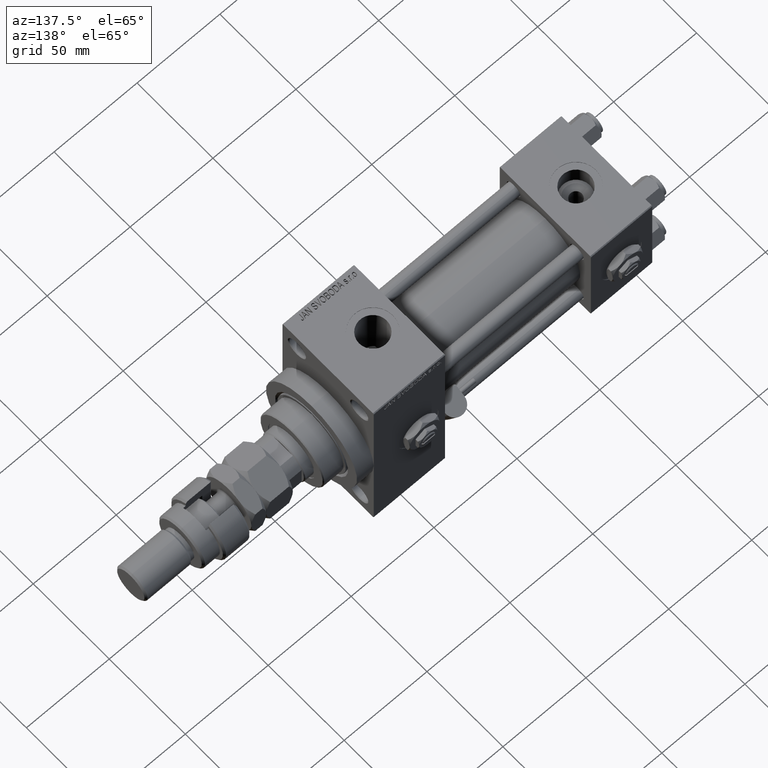
[diagram: clean part render]
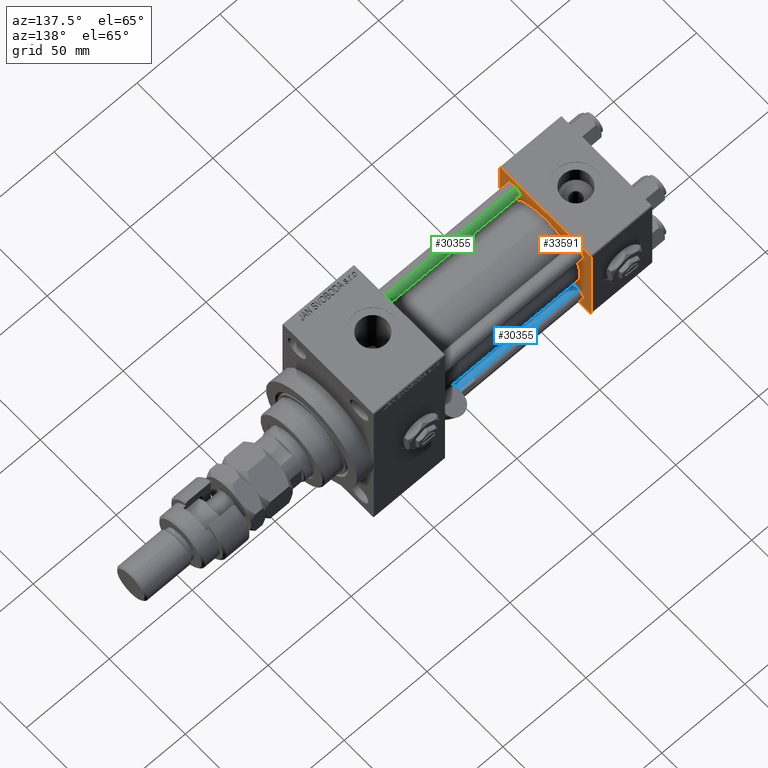
[diagram: same view with three faces highlighted in distinct colors, each labeled with its STEP entity id]
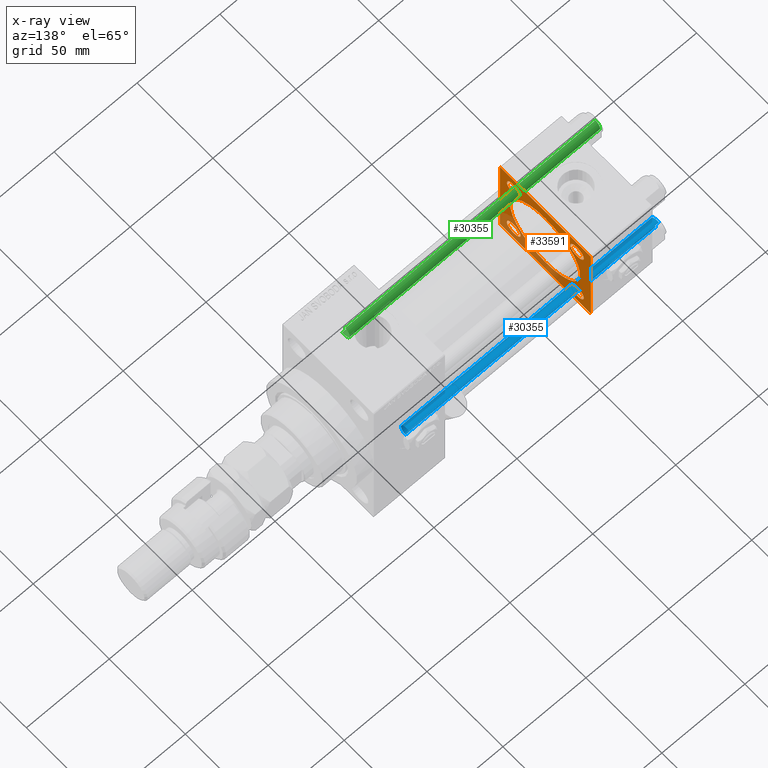
[diagram: x-ray of the same camera — body ghosted, the three highlighted faces saturated]
A machine part, auxiliary view with three faces highlighted in distinct colors.
The next image is the same camera in x-ray (body ghosted, the three faces saturated) — at least one of them is partly hidden behind the body in this view.
Their STEP definitions:

[orange] entity #33591 — the highlighted planar face has unit normal (-1, 0, 0).
#45 = EDGE_CURVE ( 'NONE', #36578, #48871, #16033, .T. ) ;
#506 = EDGE_CURVE ( 'NONE', #34351, #14310, #28151, .T. ) ;
#1149 = EDGE_CURVE ( 'NONE', #45618, #47961, #5643, .T. ) ;
#1368 = ORIENTED_EDGE ( 'NONE', *, *, #8160, .T. ) ;
#1422 = DIRECTION ( 'NONE',  ( -1.000000000000000000, 0.000000000000000000, -0.000000000000000000 ) ) ;
#1474 = AXIS2_PLACEMENT_3D ( 'NONE', #9306, #12840, #46589 ) ;
#1558 = EDGE_LOOP ( 'NONE', ( #43963, #37346 ) ) ;
#1594 = AXIS2_PLACEMENT_3D ( 'NONE', #40123, #3628, #44444 ) ;
#1610 = CARTESIAN_POINT ( 'NONE',  ( 37.00000000000000000, -20.84999999999999076, 20.85000000000000497 ) ) ;
#1866 = DIRECTION ( 'NONE',  ( 0.000000000000000000, 0.000000000000000000, 1.000000000000000000 ) ) ;
#1962 = DIRECTION ( 'NONE',  ( -0.000000000000000000, 0.7071067811865574537, 0.7071067811865376918 ) ) ;
#1975 = ORIENTED_EDGE ( 'NONE', *, *, #43296, .T. ) ;
#2321 = VERTEX_POINT ( 'NONE', #15323 ) ;
#2640 = DIRECTION ( 'NONE',  ( -1.000000000000000000, 0.000000000000000000, -0.000000000000000000 ) ) ;
#3628 = DIRECTION ( 'NONE',  ( -1.000000000000000000, 0.000000000000000000, -0.000000000000000000 ) ) ;
#3923 = ORIENTED_EDGE ( 'NONE', *, *, #14805, .T. ) ;
#3946 = DIRECTION ( 'NONE',  ( 0.000000000000000000, 0.000000000000000000, 1.000000000000000000 ) ) ;
#3992 = VERTEX_POINT ( 'NONE', #48469 ) ;
#4144 = EDGE_CURVE ( 'NONE', #14310, #34351, #22974, .T. ) ;
#4696 = CIRCLE ( 'NONE', #5534, 4.500000000000031974 ) ;
#5283 = EDGE_CURVE ( 'NONE', #11880, #10005, #7592, .T. ) ;
#5494 = FACE_BOUND ( 'NONE', #19457, .T. ) ;
#5534 = AXIS2_PLACEMENT_3D ( 'NONE', #31816, #19665, #3946 ) ;
#5643 = LINE ( 'NONE', #47270, #41090 ) ;
#5735 = ORIENTED_EDGE ( 'NONE', *, *, #6211, .T. ) ;
#6211 = EDGE_CURVE ( 'NONE', #45618, #10005, #48194, .T. ) ;
#6290 = ORIENTED_EDGE ( 'NONE', *, *, #25156, .T. ) ;
#6591 = CARTESIAN_POINT ( 'NONE',  ( 37.00000000000000000, -20.84999999999999076, 20.85000000000000497 ) ) ;
#6711 = ORIENTED_EDGE ( 'NONE', *, *, #27816, .T. ) ;
#6897 = VECTOR ( 'NONE', #48926, 1000.000000000000114 ) ;
#7592 = LINE ( 'NONE', #24634, #16139 ) ;
#8160 = EDGE_CURVE ( 'NONE', #9640, #47961, #35301, .T. ) ;
#9306 = CARTESIAN_POINT ( 'NONE',  ( 37.00000000000000000, 0.000000000000000000, 0.000000000000000000 ) ) ;
#9640 = VERTEX_POINT ( 'NONE', #52268 ) ;
#10005 = VERTEX_POINT ( 'NONE', #29704 ) ;
#10176 = DIRECTION ( 'NONE',  ( 0.000000000000000000, 0.7071067811865474617, -0.7071067811865474617 ) ) ;
#10603 = EDGE_CURVE ( 'NONE', #2321, #3992, #25529, .T. ) ;
#10901 = VERTEX_POINT ( 'NONE', #19810 ) ;
#11659 = VERTEX_POINT ( 'NONE', #23607 ) ;
#11839 = EDGE_CURVE ( 'NONE', #44563, #52365, #25943, .T. ) ;
#11880 = VERTEX_POINT ( 'NONE', #52827 ) ;
#12550 = EDGE_CURVE ( 'NONE', #46103, #9640, #12719, .T. ) ;
#12719 = LINE ( 'NONE', #29204, #38837 ) ;
#12840 = DIRECTION ( 'NONE',  ( -1.000000000000000000, 0.000000000000000000, -0.000000000000000000 ) ) ;
#13510 = CARTESIAN_POINT ( 'NONE',  ( 37.00000000000000000, 20.84999999999999787, -20.85000000000000142 ) ) ;
#13589 = CARTESIAN_POINT ( 'NONE',  ( 37.00000000000000000, 20.84999999999999787, -20.85000000000000142 ) ) ;
#13645 = FACE_OUTER_BOUND ( 'NONE', #37894, .T. ) ;
#14310 = VERTEX_POINT ( 'NONE', #50870 ) ;
#14471 = CARTESIAN_POINT ( 'NONE',  ( 37.00000000000000000, 20.84999999999999787, 16.34999999999996945 ) ) ;
#14805 = EDGE_CURVE ( 'NONE', #11880, #2321, #32432, .T. ) ;
#15323 = CARTESIAN_POINT ( 'NONE',  ( 37.00000000000000000, 29.49999999999999289, 30.00000000000000000 ) ) ;
#15440 = CARTESIAN_POINT ( 'NONE',  ( 37.00000000000000000, 29.49999999999999289, 30.00000000000000000 ) ) ;
#15565 = DIRECTION ( 'NONE',  ( 1.000000000000000000, -0.000000000000000000, 0.000000000000000000 ) ) ;
#15754 = CIRCLE ( 'NONE', #28720, 4.500000000000031974 ) ;
#16033 = CIRCLE ( 'NONE', #29834, 4.500000000000031974 ) ;
#16139 = VECTOR ( 'NONE', #53505, 1000.000000000000000 ) ;
#17939 = DIRECTION ( 'NONE',  ( 0.000000000000000000, 0.000000000000000000, 1.000000000000000000 ) ) ;
#19351 = CARTESIAN_POINT ( 'NONE',  ( 37.00000000000000000, 20.84999999999999787, -25.35000000000003340 ) ) ;
#19457 = EDGE_LOOP ( 'NONE', ( #36616, #24484 ) ) ;
#19665 = DIRECTION ( 'NONE',  ( -1.000000000000000000, 0.000000000000000000, -0.000000000000000000 ) ) ;
#19810 = CARTESIAN_POINT ( 'NONE',  ( 37.00000000000000000, -20.84999999999999076, 25.35000000000003695 ) ) ;
#20005 = EDGE_CURVE ( 'NONE', #11659, #10901, #15754, .T. ) ;
#20026 = CARTESIAN_POINT ( 'NONE',  ( 37.00000000000000711, -2.602085213965210642E-15, 23.00000000000000000 ) ) ;
#20047 = CIRCLE ( 'NONE', #22619, 23.00000000000000000 ) ;
#21363 = VECTOR ( 'NONE', #1962, 999.9999999999998863 ) ;
#21981 = DIRECTION ( 'NONE',  ( -0.000000000000000000, -0.7071067811865474617, -0.7071067811865474617 ) ) ;
#22013 = CARTESIAN_POINT ( 'NONE',  ( 37.00000000000000000, 20.84999999999999787, 25.35000000000003340 ) ) ;
#22136 = VERTEX_POINT ( 'NONE', #22013 ) ;
#22345 = CIRCLE ( 'NONE', #1594, 4.500000000000031974 ) ;
#22555 = EDGE_LOOP ( 'NONE', ( #6711, #6290 ) ) ;
#22619 = AXIS2_PLACEMENT_3D ( 'NONE', #32875, #32327, #39900 ) ;
#22974 = CIRCLE ( 'NONE', #53156, 4.500000000000031974 ) ;
#23607 = CARTESIAN_POINT ( 'NONE',  ( 37.00000000000000000, -20.84999999999999076, 16.34999999999997300 ) ) ;
#24484 = ORIENTED_EDGE ( 'NONE', *, *, #53102, .F. ) ;
#24634 = CARTESIAN_POINT ( 'NONE',  ( 37.00000000000000000, 29.99999999999999289, 30.00000000000000000 ) ) ;
#25156 = EDGE_CURVE ( 'NONE', #22136, #43144, #41734, .T. ) ;
#25529 = LINE ( 'NONE', #50369, #25869 ) ;
#25690 = DIRECTION ( 'NONE',  ( 0.000000000000000000, -1.000000000000000000, -1.156482317317871725E-16 ) ) ;
#25869 = VECTOR ( 'NONE', #41458, 1000.000000000000000 ) ;
#25943 = CIRCLE ( 'NONE', #36257, 23.00000000000000000 ) ;
#26412 = ORIENTED_EDGE ( 'NONE', *, *, #10603, .T. ) ;
#26790 = CIRCLE ( 'NONE', #39700, 4.500000000000031974 ) ;
#27017 = DIRECTION ( 'NONE',  ( 0.000000000000000000, 0.000000000000000000, 1.000000000000000000 ) ) ;
#27183 = CARTESIAN_POINT ( 'NONE',  ( 37.00000000000000000, -29.50000000000000000, -30.00000000000000711 ) ) ;
#27808 = DIRECTION ( 'NONE',  ( 0.000000000000000000, 0.000000000000000000, 1.000000000000000000 ) ) ;
#27816 = EDGE_CURVE ( 'NONE', #43144, #22136, #4696, .T. ) ;
#28151 = CIRCLE ( 'NONE', #35876, 4.500000000000031974 ) ;
#28720 = AXIS2_PLACEMENT_3D ( 'NONE', #6591, #43356, #48227 ) ;
#29204 = CARTESIAN_POINT ( 'NONE',  ( 37.00000000000000000, -30.00000000000000000, 29.99999999999999289 ) ) ;
#29704 = CARTESIAN_POINT ( 'NONE',  ( 37.00000000000000000, 29.99999999999999289, -29.50000000000000000 ) ) ;
#29834 = AXIS2_PLACEMENT_3D ( 'NONE', #52122, #48079, #27017 ) ;
#29841 = FACE_BOUND ( 'NONE', #1558, .T. ) ;
#29853 = CARTESIAN_POINT ( 'NONE',  ( 37.00000000000000000, -20.84999999999999076, -25.35000000000003695 ) ) ;
#30046 = ORIENTED_EDGE ( 'NONE', *, *, #38659, .T. ) ;
#30063 = DIRECTION ( 'NONE',  ( 0.000000000000000000, 0.000000000000000000, 1.000000000000000000 ) ) ;
#31816 = CARTESIAN_POINT ( 'NONE',  ( 37.00000000000000000, 20.84999999999999787, 20.85000000000000142 ) ) ;
#32197 = CARTESIAN_POINT ( 'NONE',  ( 37.00000000000000711, 2.146024240737016609E-16, -23.00000000000000000 ) ) ;
#32327 = DIRECTION ( 'NONE',  ( 1.000000000000000000, -0.000000000000000000, 0.000000000000000000 ) ) ;
#32432 = LINE ( 'NONE', #15440, #6897 ) ;
#32875 = CARTESIAN_POINT ( 'NONE',  ( 37.00000000000000711, -2.602085213965210642E-15, 0.000000000000000000 ) ) ;
#33295 = EDGE_LOOP ( 'NONE', ( #42666, #50721 ) ) ;
#33591 = ADVANCED_FACE ( 'NONE', ( #37936, #45788, #29841, #37671, #5494, #13645 ), #38737, .F. ) ;
#34351 = VERTEX_POINT ( 'NONE', #19351 ) ;
#35301 = LINE ( 'NONE', #43668, #48188 ) ;
#35436 = EDGE_LOOP ( 'NONE', ( #36892, #30046 ) ) ;
#35811 = DIRECTION ( 'NONE',  ( 0.000000000000000000, 0.000000000000000000, 1.000000000000000000 ) ) ;
#35876 = AXIS2_PLACEMENT_3D ( 'NONE', #13510, #2640, #27808 ) ;
#36022 = CARTESIAN_POINT ( 'NONE',  ( 37.00000000000000000, 29.99999999999999289, -29.50000000000000000 ) ) ;
#36257 = AXIS2_PLACEMENT_3D ( 'NONE', #36346, #15565, #35811 ) ;
#36346 = CARTESIAN_POINT ( 'NONE',  ( 37.00000000000000711, -2.602085213965210642E-15, 0.000000000000000000 ) ) ;
#36578 = VERTEX_POINT ( 'NONE', #29853 ) ;
#36616 = ORIENTED_EDGE ( 'NONE', *, *, #11839, .F. ) ;
#36892 = ORIENTED_EDGE ( 'NONE', *, *, #45, .T. ) ;
#37346 = ORIENTED_EDGE ( 'NONE', *, *, #49157, .T. ) ;
#37627 = DIRECTION ( 'NONE',  ( -1.000000000000000000, 0.000000000000000000, -0.000000000000000000 ) ) ;
#37671 = FACE_BOUND ( 'NONE', #22555, .T. ) ;
#37894 = EDGE_LOOP ( 'NONE', ( #42877, #5735, #42228, #3923, #26412, #1975, #51431, #1368 ) ) ;
#37936 = FACE_BOUND ( 'NONE', #35436, .T. ) ;
#38458 = CARTESIAN_POINT ( 'NONE',  ( 37.00000000000000000, 20.84999999999999787, 20.85000000000000142 ) ) ;
#38659 = EDGE_CURVE ( 'NONE', #48871, #36578, #22345, .T. ) ;
#38737 = PLANE ( 'NONE',  #1474 ) ;
#38837 = VECTOR ( 'NONE', #45673, 1000.000000000000000 ) ;
#38909 = DIRECTION ( 'NONE',  ( -1.000000000000000000, 0.000000000000000000, -0.000000000000000000 ) ) ;
#39700 = AXIS2_PLACEMENT_3D ( 'NONE', #1610, #38909, #1866 ) ;
#39900 = DIRECTION ( 'NONE',  ( 0.000000000000000000, 0.000000000000000000, 1.000000000000000000 ) ) ;
#40123 = CARTESIAN_POINT ( 'NONE',  ( 37.00000000000000000, -20.84999999999999076, -20.85000000000000497 ) ) ;
#40206 = CARTESIAN_POINT ( 'NONE',  ( 37.00000000000000000, 29.49999999999997868, -30.00000000000000000 ) ) ;
#41090 = VECTOR ( 'NONE', #25690, 1000.000000000000000 ) ;
#41458 = DIRECTION ( 'NONE',  ( 0.000000000000000000, -1.000000000000000000, -1.156482317317871725E-16 ) ) ;
#41734 = CIRCLE ( 'NONE', #43456, 4.500000000000031974 ) ;
#42228 = ORIENTED_EDGE ( 'NONE', *, *, #5283, .F. ) ;
#42477 = CARTESIAN_POINT ( 'NONE',  ( 37.00000000000000000, -30.00000000000000000, 29.49999999999999289 ) ) ;
#42666 = ORIENTED_EDGE ( 'NONE', *, *, #506, .T. ) ;
#42877 = ORIENTED_EDGE ( 'NONE', *, *, #1149, .F. ) ;
#43144 = VERTEX_POINT ( 'NONE', #14471 ) ;
#43273 = LINE ( 'NONE', #42477, #49079 ) ;
#43296 = EDGE_CURVE ( 'NONE', #3992, #46103, #43273, .T. ) ;
#43356 = DIRECTION ( 'NONE',  ( -1.000000000000000000, 0.000000000000000000, -0.000000000000000000 ) ) ;
#43456 = AXIS2_PLACEMENT_3D ( 'NONE', #38458, #1422, #17939 ) ;
#43668 = CARTESIAN_POINT ( 'NONE',  ( 37.00000000000000000, -29.50000000000001066, -30.00000000000000711 ) ) ;
#43963 = ORIENTED_EDGE ( 'NONE', *, *, #20005, .T. ) ;
#44444 = DIRECTION ( 'NONE',  ( 0.000000000000000000, 0.000000000000000000, 1.000000000000000000 ) ) ;
#44563 = VERTEX_POINT ( 'NONE', #20026 ) ;
#45450 = CARTESIAN_POINT ( 'NONE',  ( 37.00000000000000000, -30.00000000000000000, 29.49999999999999289 ) ) ;
#45618 = VERTEX_POINT ( 'NONE', #40206 ) ;
#45673 = DIRECTION ( 'NONE',  ( 0.000000000000000000, 0.000000000000000000, -1.000000000000000000 ) ) ;
#45788 = FACE_BOUND ( 'NONE', #33295, .T. ) ;
#46103 = VERTEX_POINT ( 'NONE', #45450 ) ;
#46589 = DIRECTION ( 'NONE',  ( -0.000000000000000000, 0.000000000000000000, 1.000000000000000000 ) ) ;
#47270 = CARTESIAN_POINT ( 'NONE',  ( 37.00000000000000000, 29.99999999999999289, -30.00000000000000000 ) ) ;
#47961 = VERTEX_POINT ( 'NONE', #27183 ) ;
#48079 = DIRECTION ( 'NONE',  ( -1.000000000000000000, 0.000000000000000000, -0.000000000000000000 ) ) ;
#48188 = VECTOR ( 'NONE', #10176, 1000.000000000000114 ) ;
#48194 = LINE ( 'NONE', #36022, #21363 ) ;
#48227 = DIRECTION ( 'NONE',  ( 0.000000000000000000, 0.000000000000000000, 1.000000000000000000 ) ) ;
#48469 = CARTESIAN_POINT ( 'NONE',  ( 37.00000000000000000, -29.49999999999998579, 29.99999999999999289 ) ) ;
#48871 = VERTEX_POINT ( 'NONE', #53334 ) ;
#48926 = DIRECTION ( 'NONE',  ( 0.000000000000000000, -0.7071067811865474617, 0.7071067811865474617 ) ) ;
#49079 = VECTOR ( 'NONE', #21981, 1000.000000000000114 ) ;
#49157 = EDGE_CURVE ( 'NONE', #10901, #11659, #26790, .T. ) ;
#50369 = CARTESIAN_POINT ( 'NONE',  ( 37.00000000000000000, 29.99999999999999289, 30.00000000000000000 ) ) ;
#50721 = ORIENTED_EDGE ( 'NONE', *, *, #4144, .T. ) ;
#50870 = CARTESIAN_POINT ( 'NONE',  ( 37.00000000000000000, 20.84999999999999787, -16.34999999999996945 ) ) ;
#51431 = ORIENTED_EDGE ( 'NONE', *, *, #12550, .T. ) ;
#52122 = CARTESIAN_POINT ( 'NONE',  ( 37.00000000000000000, -20.84999999999999076, -20.85000000000000497 ) ) ;
#52268 = CARTESIAN_POINT ( 'NONE',  ( 37.00000000000000000, -30.00000000000000000, -29.50000000000001776 ) ) ;
#52365 = VERTEX_POINT ( 'NONE', #32197 ) ;
#52827 = CARTESIAN_POINT ( 'NONE',  ( 37.00000000000000000, 29.99999999999999289, 29.50000000000000000 ) ) ;
#53102 = EDGE_CURVE ( 'NONE', #52365, #44563, #20047, .T. ) ;
#53156 = AXIS2_PLACEMENT_3D ( 'NONE', #13589, #37627, #30063 ) ;
#53334 = CARTESIAN_POINT ( 'NONE',  ( 37.00000000000000000, -20.84999999999999076, -16.34999999999997300 ) ) ;
#53505 = DIRECTION ( 'NONE',  ( 0.000000000000000000, 0.000000000000000000, -1.000000000000000000 ) ) ;

[blue] entity #30355 — the highlighted cylindrical surface (edge-blend (fillet) strip) has radius 4 mm, axis along (1, -0, 0).
#143 = LINE ( 'NONE', #16665, #7612 ) ;
#912 = EDGE_LOOP ( 'NONE', ( #49861, #18132, #41698, #10858 ) ) ;
#2876 = DIRECTION ( 'NONE',  ( -0.000000000000000000, -0.000000000000000000, 1.000000000000000000 ) ) ;
#3738 = CARTESIAN_POINT ( 'NONE',  ( 0.000000000000000000, 0.000000000000000000, 152.0000000000000000 ) ) ;
#5888 = VERTEX_POINT ( 'NONE', #20158 ) ;
#6435 = LINE ( 'NONE', #35627, #51554 ) ;
#7612 = VECTOR ( 'NONE', #49627, 1000.000000000000000 ) ;
#8615 = FACE_OUTER_BOUND ( 'NONE', #912, .T. ) ;
#10099 = DIRECTION ( 'NONE',  ( 0.000000000000000000, 0.000000000000000000, -1.000000000000000000 ) ) ;
#10858 = ORIENTED_EDGE ( 'NONE', *, *, #42836, .T. ) ;
#11732 = AXIS2_PLACEMENT_3D ( 'NONE', #3738, #36705, #45626 ) ;
#16665 = CARTESIAN_POINT ( 'NONE',  ( -4.000000000000000000, 0.000000000000000000, 152.0000000000000000 ) ) ;
#17022 = CIRCLE ( 'NONE', #39482, 4.000000000000000000 ) ;
#17153 = CIRCLE ( 'NONE', #29239, 4.000000000000000000 ) ;
#18132 = ORIENTED_EDGE ( 'NONE', *, *, #36549, .T. ) ;
#20158 = CARTESIAN_POINT ( 'NONE',  ( -4.000000000000000000, 0.000000000000000000, 0.5000000000000281997 ) ) ;
#23579 = CARTESIAN_POINT ( 'NONE',  ( -4.000000000000000000, 0.000000000000000000, 151.5000000000000284 ) ) ;
#23966 = VERTEX_POINT ( 'NONE', #53335 ) ;
#25809 = VERTEX_POINT ( 'NONE', #31294 ) ;
#26970 = CARTESIAN_POINT ( 'NONE',  ( 0.000000000000000000, 0.000000000000000000, 0.5000000000000281997 ) ) ;
#27275 = DIRECTION ( 'NONE',  ( -0.000000000000000000, -0.000000000000000000, -1.000000000000000000 ) ) ;
#29239 = AXIS2_PLACEMENT_3D ( 'NONE', #26970, #2876, #32075 ) ;
#30128 = CARTESIAN_POINT ( 'NONE',  ( 0.000000000000000000, 0.000000000000000000, 151.5000000000000284 ) ) ;
#30355 = ADVANCED_FACE ( 'NONE', ( #8615 ), #33200, .T. ) ;
#31294 = CARTESIAN_POINT ( 'NONE',  ( 4.000000000000000000, 4.898587196589412829E-16, 0.5000000000000281997 ) ) ;
#32075 = DIRECTION ( 'NONE',  ( 1.000000000000000000, 0.000000000000000000, 0.000000000000000000 ) ) ;
#33200 = CYLINDRICAL_SURFACE ( 'NONE', #11732, 4.000000000000000000 ) ;
#35627 = CARTESIAN_POINT ( 'NONE',  ( 4.000000000000000000, 4.898587196589412829E-16, 152.0000000000000000 ) ) ;
#36549 = EDGE_CURVE ( 'NONE', #23966, #52260, #17022, .T. ) ;
#36705 = DIRECTION ( 'NONE',  ( -0.000000000000000000, -0.000000000000000000, -1.000000000000000000 ) ) ;
#36819 = EDGE_CURVE ( 'NONE', #23966, #25809, #6435, .T. ) ;
#39482 = AXIS2_PLACEMENT_3D ( 'NONE', #30128, #10099, #47393 ) ;
#41698 = ORIENTED_EDGE ( 'NONE', *, *, #42229, .T. ) ;
#42229 = EDGE_CURVE ( 'NONE', #52260, #5888, #143, .T. ) ;
#42836 = EDGE_CURVE ( 'NONE', #5888, #25809, #17153, .T. ) ;
#45626 = DIRECTION ( 'NONE',  ( -1.000000000000000000, 0.000000000000000000, 0.000000000000000000 ) ) ;
#47393 = DIRECTION ( 'NONE',  ( 1.000000000000000000, 0.000000000000000000, 0.000000000000000000 ) ) ;
#49627 = DIRECTION ( 'NONE',  ( -0.000000000000000000, -0.000000000000000000, -1.000000000000000000 ) ) ;
#49861 = ORIENTED_EDGE ( 'NONE', *, *, #36819, .F. ) ;
#51554 = VECTOR ( 'NONE', #27275, 1000.000000000000000 ) ;
#52260 = VERTEX_POINT ( 'NONE', #23579 ) ;
#53335 = CARTESIAN_POINT ( 'NONE',  ( 4.000000000000000000, 4.898587196589412829E-16, 151.5000000000000284 ) ) ;

[green] entity #30355 — the highlighted cylindrical surface (edge-blend (fillet) strip) has radius 4 mm, axis along (1, 0, 0).
#143 = LINE ( 'NONE', #16665, #7612 ) ;
#912 = EDGE_LOOP ( 'NONE', ( #49861, #18132, #41698, #10858 ) ) ;
#2876 = DIRECTION ( 'NONE',  ( -0.000000000000000000, -0.000000000000000000, 1.000000000000000000 ) ) ;
#3738 = CARTESIAN_POINT ( 'NONE',  ( 0.000000000000000000, 0.000000000000000000, 152.0000000000000000 ) ) ;
#5888 = VERTEX_POINT ( 'NONE', #20158 ) ;
#6435 = LINE ( 'NONE', #35627, #51554 ) ;
#7612 = VECTOR ( 'NONE', #49627, 1000.000000000000000 ) ;
#8615 = FACE_OUTER_BOUND ( 'NONE', #912, .T. ) ;
#10099 = DIRECTION ( 'NONE',  ( 0.000000000000000000, 0.000000000000000000, -1.000000000000000000 ) ) ;
#10858 = ORIENTED_EDGE ( 'NONE', *, *, #42836, .T. ) ;
#11732 = AXIS2_PLACEMENT_3D ( 'NONE', #3738, #36705, #45626 ) ;
#16665 = CARTESIAN_POINT ( 'NONE',  ( -4.000000000000000000, 0.000000000000000000, 152.0000000000000000 ) ) ;
#17022 = CIRCLE ( 'NONE', #39482, 4.000000000000000000 ) ;
#17153 = CIRCLE ( 'NONE', #29239, 4.000000000000000000 ) ;
#18132 = ORIENTED_EDGE ( 'NONE', *, *, #36549, .T. ) ;
#20158 = CARTESIAN_POINT ( 'NONE',  ( -4.000000000000000000, 0.000000000000000000, 0.5000000000000281997 ) ) ;
#23579 = CARTESIAN_POINT ( 'NONE',  ( -4.000000000000000000, 0.000000000000000000, 151.5000000000000284 ) ) ;
#23966 = VERTEX_POINT ( 'NONE', #53335 ) ;
#25809 = VERTEX_POINT ( 'NONE', #31294 ) ;
#26970 = CARTESIAN_POINT ( 'NONE',  ( 0.000000000000000000, 0.000000000000000000, 0.5000000000000281997 ) ) ;
#27275 = DIRECTION ( 'NONE',  ( -0.000000000000000000, -0.000000000000000000, -1.000000000000000000 ) ) ;
#29239 = AXIS2_PLACEMENT_3D ( 'NONE', #26970, #2876, #32075 ) ;
#30128 = CARTESIAN_POINT ( 'NONE',  ( 0.000000000000000000, 0.000000000000000000, 151.5000000000000284 ) ) ;
#30355 = ADVANCED_FACE ( 'NONE', ( #8615 ), #33200, .T. ) ;
#31294 = CARTESIAN_POINT ( 'NONE',  ( 4.000000000000000000, 4.898587196589412829E-16, 0.5000000000000281997 ) ) ;
#32075 = DIRECTION ( 'NONE',  ( 1.000000000000000000, 0.000000000000000000, 0.000000000000000000 ) ) ;
#33200 = CYLINDRICAL_SURFACE ( 'NONE', #11732, 4.000000000000000000 ) ;
#35627 = CARTESIAN_POINT ( 'NONE',  ( 4.000000000000000000, 4.898587196589412829E-16, 152.0000000000000000 ) ) ;
#36549 = EDGE_CURVE ( 'NONE', #23966, #52260, #17022, .T. ) ;
#36705 = DIRECTION ( 'NONE',  ( -0.000000000000000000, -0.000000000000000000, -1.000000000000000000 ) ) ;
#36819 = EDGE_CURVE ( 'NONE', #23966, #25809, #6435, .T. ) ;
#39482 = AXIS2_PLACEMENT_3D ( 'NONE', #30128, #10099, #47393 ) ;
#41698 = ORIENTED_EDGE ( 'NONE', *, *, #42229, .T. ) ;
#42229 = EDGE_CURVE ( 'NONE', #52260, #5888, #143, .T. ) ;
#42836 = EDGE_CURVE ( 'NONE', #5888, #25809, #17153, .T. ) ;
#45626 = DIRECTION ( 'NONE',  ( -1.000000000000000000, 0.000000000000000000, 0.000000000000000000 ) ) ;
#47393 = DIRECTION ( 'NONE',  ( 1.000000000000000000, 0.000000000000000000, 0.000000000000000000 ) ) ;
#49627 = DIRECTION ( 'NONE',  ( -0.000000000000000000, -0.000000000000000000, -1.000000000000000000 ) ) ;
#49861 = ORIENTED_EDGE ( 'NONE', *, *, #36819, .F. ) ;
#51554 = VECTOR ( 'NONE', #27275, 1000.000000000000000 ) ;
#52260 = VERTEX_POINT ( 'NONE', #23579 ) ;
#53335 = CARTESIAN_POINT ( 'NONE',  ( 4.000000000000000000, 4.898587196589412829E-16, 151.5000000000000284 ) ) ;